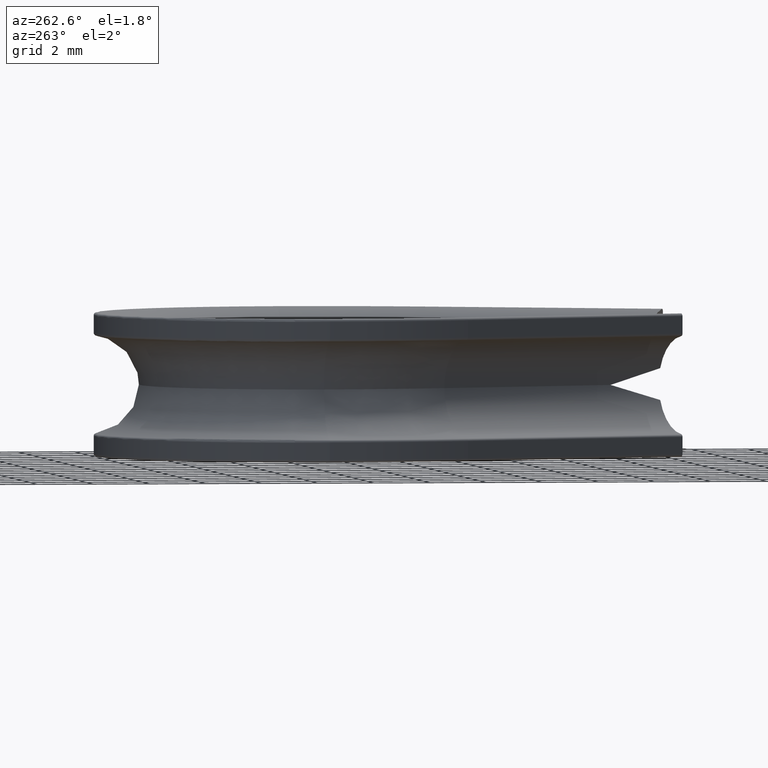
[diagram: clean part render]
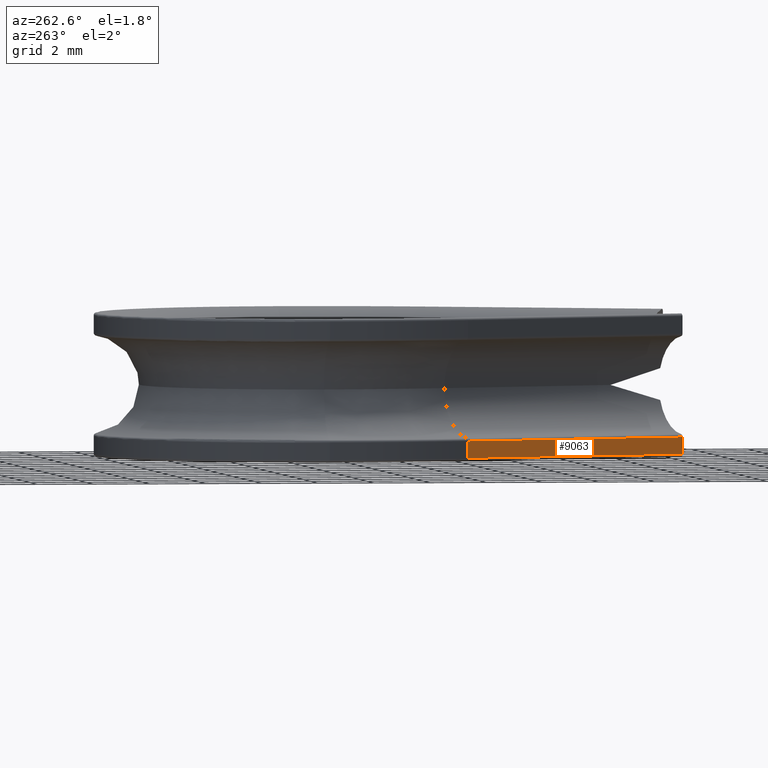
[diagram: same view with one face highlighted and labeled with its STEP entity id]
A machine part, auxiliary view. The second image highlights one B-rep face of the part: STEP entity #9063.
In plain terms, the highlighted planar face has unit normal (0.9129, 0.4081, -0).
Its self-contained STEP definition (entity closure, byte-faithful):
#142 = DIRECTION ( 'NONE',  ( 0.9129360747951575900, 0.4081025892316911800, -0.0000000000000000000 ) ) ;
#249 = CARTESIAN_POINT ( 'NONE',  ( -2.691046579508378200, -0.9794462141560602600, -1.833030277982335800 ) ) ;
#319 = DIRECTION ( 'NONE',  ( 0.0000000000000000000, 0.0000000000000000000, 1.000000000000000000 ) ) ;
#435 = EDGE_CURVE ( 'NONE', #7849, #14266, #15463, .T. ) ;
#609 = DIRECTION ( 'NONE',  ( -0.4081025892316911800, 0.9129360747951575900, -0.0000000000000000000 ) ) ;
#1795 = VECTOR ( 'NONE', #609, 1000.000000000000000 ) ;
#4094 = CARTESIAN_POINT ( 'NONE',  ( -6.320407327459953700, 7.139527893527028500, -2.437211521390787900 ) ) ;
#5289 = LINE ( 'NONE', #10483, #7776 ) ;
#5458 = CARTESIAN_POINT ( 'NONE',  ( -6.320407327459953700, 7.139527893527028500, -2.437211521390787900 ) ) ;
#6232 = EDGE_CURVE ( 'NONE', #15715, #7849, #5289, .T. ) ;
#6244 = PLANE ( 'NONE',  #6785 ) ;
#6718 = LINE ( 'NONE', #12452, #12437 ) ;
#6785 = AXIS2_PLACEMENT_3D ( 'NONE', #14834, #142, #8713 ) ;
#6853 = ORIENTED_EDGE ( 'NONE', *, *, #15700, .F. ) ;
#7776 = VECTOR ( 'NONE', #13919, 1000.000000000000000 ) ;
#7849 = VERTEX_POINT ( 'NONE', #249 ) ;
#7886 = CARTESIAN_POINT ( 'NONE',  ( -6.320407327459953700, 7.139527893527028500, -1.833030277982335800 ) ) ;
#8392 = ORIENTED_EDGE ( 'NONE', *, *, #14624, .T. ) ;
#8713 = DIRECTION ( 'NONE',  ( -0.4081025892316911800, 0.9129360747951575900, 0.0000000000000000000 ) ) ;
#8923 = FACE_OUTER_BOUND ( 'NONE', #10119, .T. ) ;
#9063 = ADVANCED_FACE ( 'NONE', ( #8923 ), #6244, .F. ) ;
#9865 = ORIENTED_EDGE ( 'NONE', *, *, #435, .T. ) ;
#10119 = EDGE_LOOP ( 'NONE', ( #12105, #9865, #6853, #8392 ) ) ;
#10352 = LINE ( 'NONE', #5458, #10546 ) ;
#10483 = CARTESIAN_POINT ( 'NONE',  ( -2.691046579508378200, -0.9794462141560602600, -1.743559577416269300 ) ) ;
#10546 = VECTOR ( 'NONE', #12705, 1000.000000000000000 ) ;
#11583 = CARTESIAN_POINT ( 'NONE',  ( -2.691046579508378200, -0.9794462141560602600, -2.437211521390787900 ) ) ;
#11872 = VERTEX_POINT ( 'NONE', #4094 ) ;
#12105 = ORIENTED_EDGE ( 'NONE', *, *, #6232, .T. ) ;
#12335 = CARTESIAN_POINT ( 'NONE',  ( -6.320407327459953700, 7.139527893527028500, -1.833030277982336000 ) ) ;
#12437 = VECTOR ( 'NONE', #319, 1000.000000000000000 ) ;
#12452 = CARTESIAN_POINT ( 'NONE',  ( -6.320407327459953700, 7.139527893527028500, -1.743559577416269300 ) ) ;
#12705 = DIRECTION ( 'NONE',  ( 0.4081025892316911800, -0.9129360747951575900, 0.0000000000000000000 ) ) ;
#13919 = DIRECTION ( 'NONE',  ( 0.0000000000000000000, 0.0000000000000000000, 1.000000000000000000 ) ) ;
#14266 = VERTEX_POINT ( 'NONE', #12335 ) ;
#14624 = EDGE_CURVE ( 'NONE', #11872, #15715, #10352, .T. ) ;
#14834 = CARTESIAN_POINT ( 'NONE',  ( -6.320407327459953700, 7.139527893527028500, -1.743559577416269300 ) ) ;
#15463 = LINE ( 'NONE', #7886, #1795 ) ;
#15700 = EDGE_CURVE ( 'NONE', #11872, #14266, #6718, .T. ) ;
#15715 = VERTEX_POINT ( 'NONE', #11583 ) ;